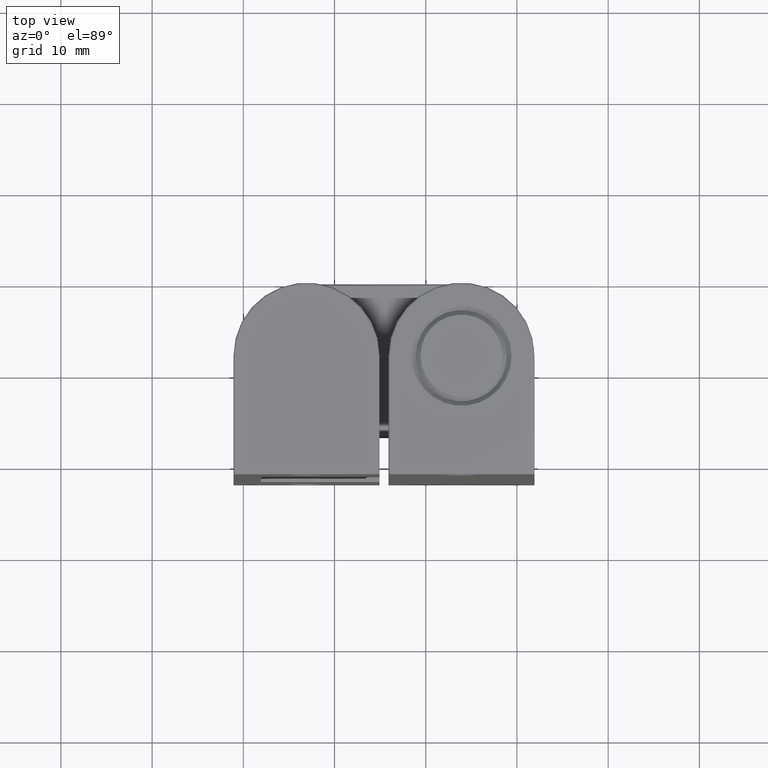
[diagram: clean part render]
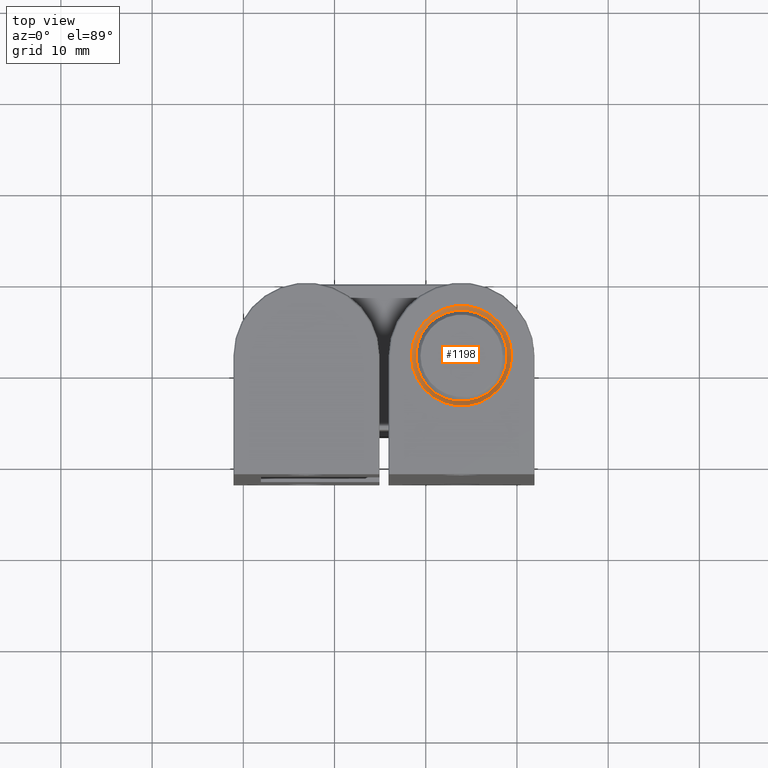
[diagram: same view with one face highlighted and labeled with its STEP entity id]
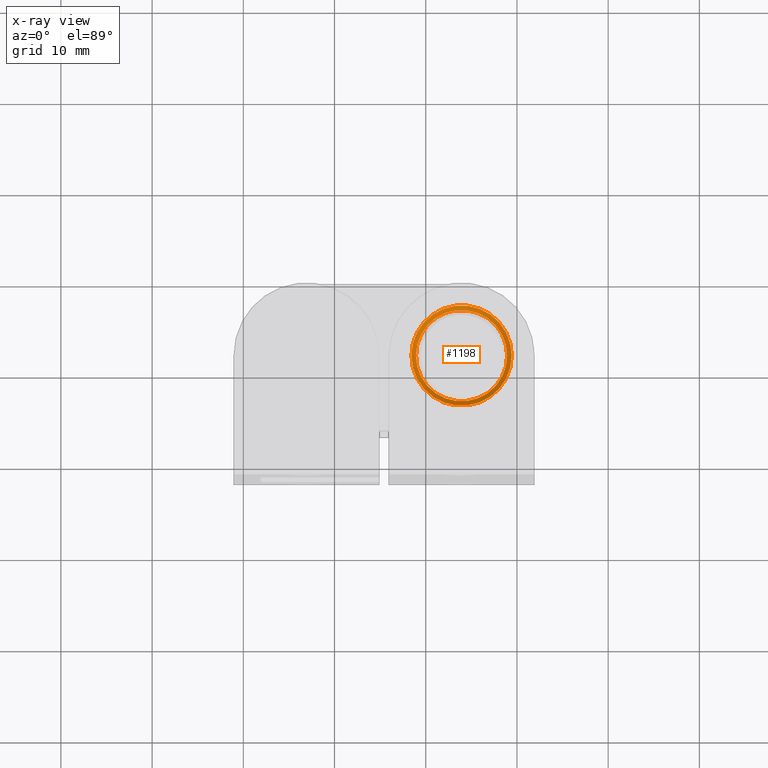
[diagram: x-ray of the same camera — body ghosted, the highlighted face saturated]
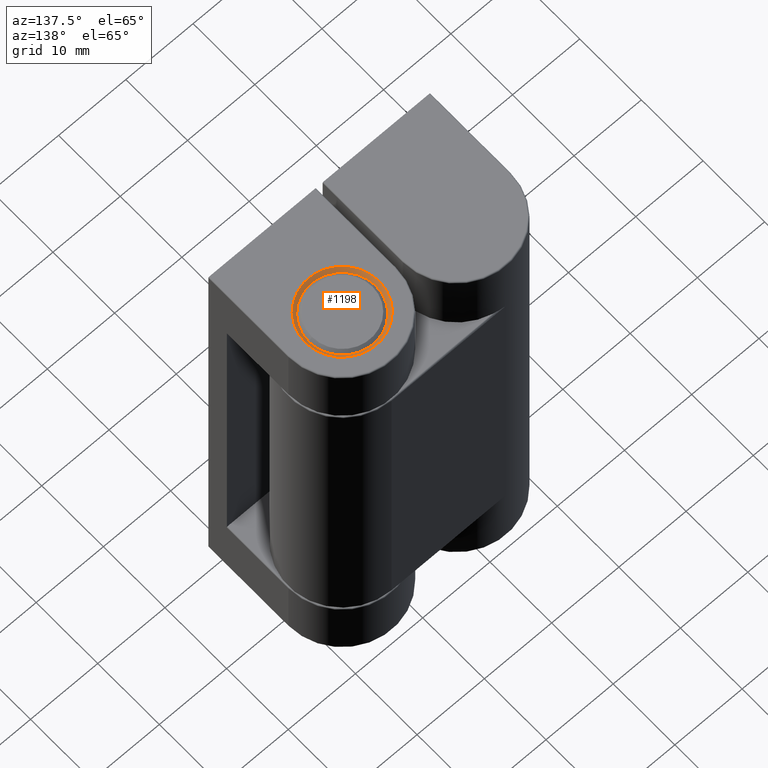
[diagram: same view with one face highlighted and labeled with its STEP entity id]
A machine part, top view. The second image highlights one B-rep face of the part: STEP entity #1198.
The next image is the same camera in x-ray: the body ghosted, the highlighted face saturated — about 0% of this face is hidden behind the body in this view.
A second angle (auxiliary view) of the same face is appended — the face is thin or edge-on in the first view.
In plain terms, the highlighted conical surface has half-angle 45 deg.
Its self-contained STEP definition (entity closure, byte-faithful):
#49=FACE_BOUND('',#235,.T.);
#63=CONICAL_SURFACE('',#1313,5.25,45.);
#148=FACE_OUTER_BOUND('',#234,.T.);
#234=EDGE_LOOP('',(#1008));
#235=EDGE_LOOP('',(#1009));
#497=CIRCLE('',#1314,5.);
#498=CIRCLE('',#1315,5.5);
#602=VERTEX_POINT('',#2065);
#603=VERTEX_POINT('',#2067);
#745=EDGE_CURVE('',#602,#602,#497,.T.);
#746=EDGE_CURVE('',#603,#603,#498,.T.);
#1008=ORIENTED_EDGE('',*,*,#745,.T.);
#1009=ORIENTED_EDGE('',*,*,#746,.T.);
#1198=ADVANCED_FACE('',(#148,#49),#63,.F.);
#1313=AXIS2_PLACEMENT_3D('',#2064,#1610,#1611);
#1314=AXIS2_PLACEMENT_3D('',#2066,#1612,#1613);
#1315=AXIS2_PLACEMENT_3D('',#2068,#1614,#1615);
#1610=DIRECTION('center_axis',(0.,0.,1.));
#1611=DIRECTION('ref_axis',(-1.,0.,0.));
#1612=DIRECTION('center_axis',(0.,0.,-1.));
#1613=DIRECTION('ref_axis',(-1.,0.,0.));
#1614=DIRECTION('center_axis',(0.,0.,1.));
#1615=DIRECTION('ref_axis',(-1.,0.,0.));
#2064=CARTESIAN_POINT('Origin',(-2.63299061816681E-15,13.,-0.25));
#2065=CARTESIAN_POINT('',(5.,13.,-0.5));
#2066=CARTESIAN_POINT('Origin',(-2.63299061816681E-15,13.,-0.5));
#2067=CARTESIAN_POINT('',(5.5,13.,0.));
#2068=CARTESIAN_POINT('Origin',(-2.63299061816681E-15,13.,0.));